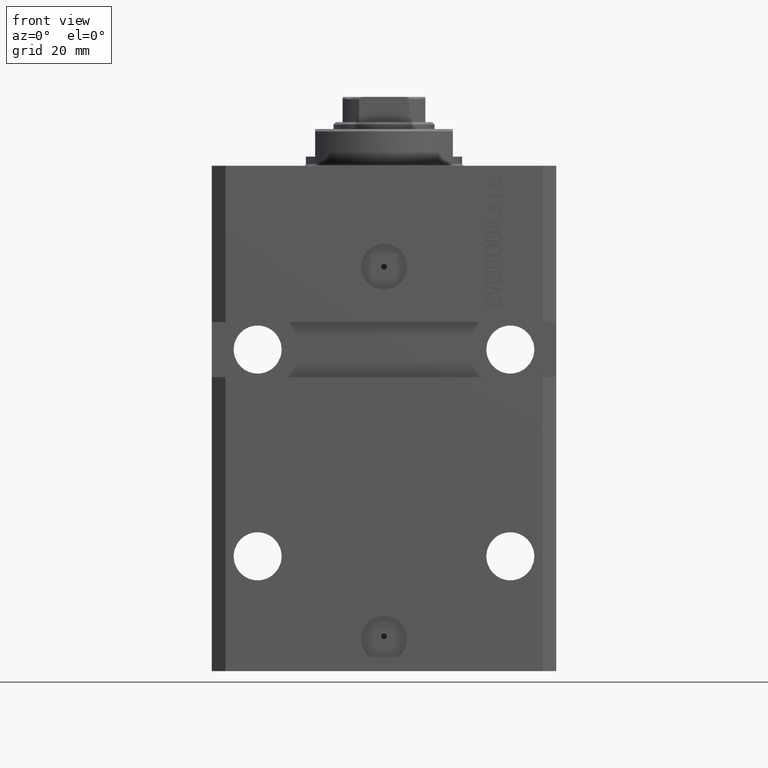
[diagram: clean part render]
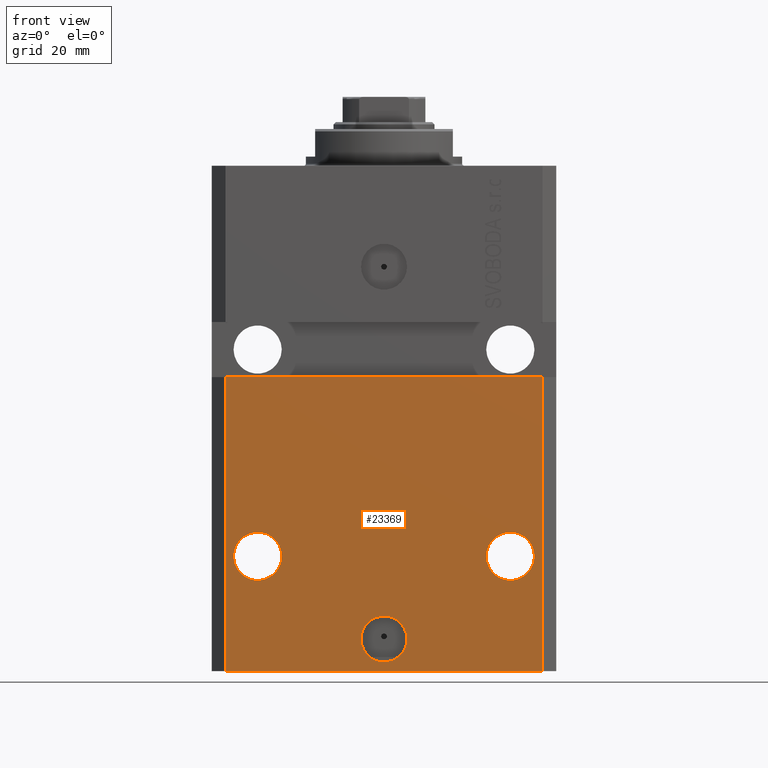
[diagram: same view with one face highlighted and labeled with its STEP entity id]
A machine part, front view. The second image highlights one B-rep face of the part: STEP entity #23369.
In plain terms, the highlighted planar face has unit normal (0, -1, 0).
Its self-contained STEP definition (entity closure, byte-faithful):
#7 = ORIENTED_EDGE ( 'NONE', *, *, #10841, .F. ) ;
#90 = CARTESIAN_POINT ( 'NONE',  ( 22.25000000000002132, -27.49999999999999289, -84.99999999999998579 ) ) ;
#634 = AXIS2_PLACEMENT_3D ( 'NONE', #33314, #36427, #18222 ) ;
#725 = ORIENTED_EDGE ( 'NONE', *, *, #37036, .T. ) ;
#945 = DIRECTION ( 'NONE',  ( 1.176083712526788232E-16, -1.000000000000000000, 0.000000000000000000 ) ) ;
#977 = CARTESIAN_POINT ( 'NONE',  ( -32.75000000000000711, -27.50000000000000000, -84.99999999999998579 ) ) ;
#1453 = CIRCLE ( 'NONE', #27432, 5.249999999999994671 ) ;
#1543 = FACE_BOUND ( 'NONE', #40558, .T. ) ;
#2914 = AXIS2_PLACEMENT_3D ( 'NONE', #44276, #945, #22463 ) ;
#2955 = VERTEX_POINT ( 'NONE', #17809 ) ;
#3005 = VERTEX_POINT ( 'NONE', #32192 ) ;
#3083 = VECTOR ( 'NONE', #11678, 1000.000000000000000 ) ;
#3258 = CARTESIAN_POINT ( 'NONE',  ( -22.25000000000002132, -27.50000000000000000, -84.99999999999998579 ) ) ;
#4034 = LINE ( 'NONE', #7140, #3083 ) ;
#4898 = VECTOR ( 'NONE', #35366, 1000.000000000000000 ) ;
#5131 = VECTOR ( 'NONE', #11382, 1000.000000000000000 ) ;
#5201 = CIRCLE ( 'NONE', #38087, 5.249999999999994671 ) ;
#6153 = CARTESIAN_POINT ( 'NONE',  ( -34.49999999999998579, -27.49999999999999645, -110.0000000000000000 ) ) ;
#6390 = DIRECTION ( 'NONE',  ( 1.000000000000000000, 9.251858538542972814E-17, -9.251858538542972814E-17 ) ) ;
#7140 = CARTESIAN_POINT ( 'NONE',  ( -34.49999999999998579, -27.49999999999999645, -110.0000000000000000 ) ) ;
#7354 = ORIENTED_EDGE ( 'NONE', *, *, #28995, .F. ) ;
#7480 = CIRCLE ( 'NONE', #634, 5.000000000000006217 ) ;
#8309 = CIRCLE ( 'NONE', #42692, 5.249999999999994671 ) ;
#8758 = EDGE_CURVE ( 'NONE', #2955, #10878, #21419, .T. ) ;
#9740 = LINE ( 'NONE', #6153, #4898 ) ;
#10533 = VERTEX_POINT ( 'NONE', #37790 ) ;
#10841 = EDGE_CURVE ( 'NONE', #25369, #3005, #7480, .T. ) ;
#10878 = VERTEX_POINT ( 'NONE', #22044 ) ;
#11171 = EDGE_CURVE ( 'NONE', #33762, #27647, #5201, .T. ) ;
#11382 = DIRECTION ( 'NONE',  ( 0.000000000000000000, 0.000000000000000000, 1.000000000000000000 ) ) ;
#11549 = EDGE_CURVE ( 'NONE', #41991, #41532, #8309, .T. ) ;
#11678 = DIRECTION ( 'NONE',  ( 0.000000000000000000, 0.000000000000000000, 1.000000000000000000 ) ) ;
#11800 = DIRECTION ( 'NONE',  ( 1.176083712526788232E-16, -1.000000000000000000, 0.000000000000000000 ) ) ;
#11934 = DIRECTION ( 'NONE',  ( 1.176083712526788232E-16, -1.000000000000000000, 0.000000000000000000 ) ) ;
#13289 = EDGE_CURVE ( 'NONE', #41532, #41991, #1453, .T. ) ;
#13518 = CARTESIAN_POINT ( 'NONE',  ( -27.50000000000001421, -27.50000000000000000, -84.99999999999998579 ) ) ;
#14065 = VERTEX_POINT ( 'NONE', #27779 ) ;
#15848 = AXIS2_PLACEMENT_3D ( 'NONE', #23035, #11800, #37435 ) ;
#15946 = ORIENTED_EDGE ( 'NONE', *, *, #34153, .F. ) ;
#17809 = CARTESIAN_POINT ( 'NONE',  ( 34.49999999999999289, -27.49999999999999645, -110.0000000000000000 ) ) ;
#18222 = DIRECTION ( 'NONE',  ( 1.000000000000000000, 0.000000000000000000, 0.000000000000000000 ) ) ;
#18322 = CARTESIAN_POINT ( 'NONE',  ( 34.49999999999999289, -27.49999999999999645, -110.0000000000000000 ) ) ;
#19119 = EDGE_CURVE ( 'NONE', #27647, #33762, #44174, .T. ) ;
#19640 = DIRECTION ( 'NONE',  ( -1.000000000000000000, 0.000000000000000000, 0.000000000000000000 ) ) ;
#19696 = FACE_BOUND ( 'NONE', #41352, .T. ) ;
#19902 = CARTESIAN_POINT ( 'NONE',  ( 32.75000000000000711, -27.49999999999999289, -84.99999999999998579 ) ) ;
#20514 = EDGE_CURVE ( 'NONE', #3005, #25369, #29666, .T. ) ;
#21066 = CARTESIAN_POINT ( 'NONE',  ( -5.000000000000006217, -27.49999999999999645, -103.0000000000000000 ) ) ;
#21419 = LINE ( 'NONE', #18322, #5131 ) ;
#21647 = EDGE_LOOP ( 'NONE', ( #15946, #7354, #725, #44549 ) ) ;
#22044 = CARTESIAN_POINT ( 'NONE',  ( 34.49999999999999289, -27.49999999999999289, -46.00000000000000711 ) ) ;
#22279 = EDGE_LOOP ( 'NONE', ( #25597, #7 ) ) ;
#22463 = DIRECTION ( 'NONE',  ( 1.000000000000000000, 0.000000000000000000, 0.000000000000000000 ) ) ;
#23035 = CARTESIAN_POINT ( 'NONE',  ( 27.50000000000001421, -27.49999999999999289, -84.99999999999998579 ) ) ;
#23369 = ADVANCED_FACE ( 'NONE', ( #37925, #19696, #1543, #27118 ), #41747, .T. ) ;
#24277 = ORIENTED_EDGE ( 'NONE', *, *, #11171, .F. ) ;
#25369 = VERTEX_POINT ( 'NONE', #21066 ) ;
#25499 = CARTESIAN_POINT ( 'NONE',  ( -37.50000000000000000, -27.50000000000000000, -46.00000000000000000 ) ) ;
#25597 = ORIENTED_EDGE ( 'NONE', *, *, #20514, .F. ) ;
#26002 = CARTESIAN_POINT ( 'NONE',  ( -34.49999999999998579, -27.49999999999999645, -110.0000000000000000 ) ) ;
#26940 = ORIENTED_EDGE ( 'NONE', *, *, #13289, .F. ) ;
#27118 = FACE_OUTER_BOUND ( 'NONE', #21647, .T. ) ;
#27432 = AXIS2_PLACEMENT_3D ( 'NONE', #34272, #45528, #19640 ) ;
#27647 = VERTEX_POINT ( 'NONE', #19902 ) ;
#27779 = CARTESIAN_POINT ( 'NONE',  ( -34.49999999999998579, -27.50000000000000000, -46.00000000000000000 ) ) ;
#28995 = EDGE_CURVE ( 'NONE', #10533, #14065, #4034, .T. ) ;
#29604 = ORIENTED_EDGE ( 'NONE', *, *, #11549, .F. ) ;
#29666 = CIRCLE ( 'NONE', #2914, 5.000000000000006217 ) ;
#31313 = AXIS2_PLACEMENT_3D ( 'NONE', #26002, #37045, #36321 ) ;
#32192 = CARTESIAN_POINT ( 'NONE',  ( 5.000000000000006217, -27.49999999999999645, -103.0000000000000000 ) ) ;
#33314 = CARTESIAN_POINT ( 'NONE',  ( 0.000000000000000000, -27.49999999999999645, -103.0000000000000000 ) ) ;
#33736 = DIRECTION ( 'NONE',  ( 1.000000000000000000, 0.000000000000000000, 0.000000000000000000 ) ) ;
#33762 = VERTEX_POINT ( 'NONE', #90 ) ;
#34153 = EDGE_CURVE ( 'NONE', #14065, #10878, #43724, .T. ) ;
#34272 = CARTESIAN_POINT ( 'NONE',  ( -27.50000000000001421, -27.50000000000000000, -84.99999999999998579 ) ) ;
#35366 = DIRECTION ( 'NONE',  ( 1.000000000000000000, 0.000000000000000000, 0.000000000000000000 ) ) ;
#36321 = DIRECTION ( 'NONE',  ( 0.000000000000000000, -0.000000000000000000, -1.000000000000000000 ) ) ;
#36427 = DIRECTION ( 'NONE',  ( 1.176083712526788232E-16, -1.000000000000000000, 0.000000000000000000 ) ) ;
#37036 = EDGE_CURVE ( 'NONE', #10533, #2955, #9740, .T. ) ;
#37045 = DIRECTION ( 'NONE',  ( 0.000000000000000000, -1.000000000000000000, 0.000000000000000000 ) ) ;
#37327 = CARTESIAN_POINT ( 'NONE',  ( 27.50000000000001421, -27.49999999999999289, -84.99999999999998579 ) ) ;
#37435 = DIRECTION ( 'NONE',  ( 1.000000000000000000, 0.000000000000000000, 0.000000000000000000 ) ) ;
#37790 = CARTESIAN_POINT ( 'NONE',  ( -34.49999999999998579, -27.49999999999999645, -110.0000000000000000 ) ) ;
#37925 = FACE_BOUND ( 'NONE', #22279, .T. ) ;
#38087 = AXIS2_PLACEMENT_3D ( 'NONE', #37327, #11934, #33736 ) ;
#38928 = DIRECTION ( 'NONE',  ( 1.176083712526788232E-16, -1.000000000000000000, 0.000000000000000000 ) ) ;
#39911 = ORIENTED_EDGE ( 'NONE', *, *, #19119, .F. ) ;
#40558 = EDGE_LOOP ( 'NONE', ( #29604, #26940 ) ) ;
#41352 = EDGE_LOOP ( 'NONE', ( #39911, #24277 ) ) ;
#41532 = VERTEX_POINT ( 'NONE', #977 ) ;
#41747 = PLANE ( 'NONE',  #31313 ) ;
#41991 = VERTEX_POINT ( 'NONE', #3258 ) ;
#42046 = DIRECTION ( 'NONE',  ( -1.000000000000000000, 0.000000000000000000, 0.000000000000000000 ) ) ;
#42244 = VECTOR ( 'NONE', #6390, 1000.000000000000000 ) ;
#42692 = AXIS2_PLACEMENT_3D ( 'NONE', #13518, #38928, #42046 ) ;
#43724 = LINE ( 'NONE', #25499, #42244 ) ;
#44174 = CIRCLE ( 'NONE', #15848, 5.249999999999994671 ) ;
#44276 = CARTESIAN_POINT ( 'NONE',  ( 0.000000000000000000, -27.49999999999999645, -103.0000000000000000 ) ) ;
#44549 = ORIENTED_EDGE ( 'NONE', *, *, #8758, .T. ) ;
#45528 = DIRECTION ( 'NONE',  ( 1.176083712526788232E-16, -1.000000000000000000, 0.000000000000000000 ) ) ;